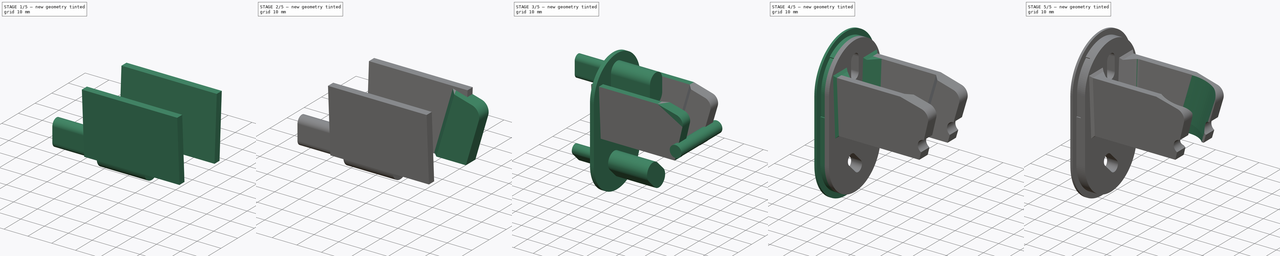
[diagram: build sequence overview — one tinted view per stage of 5, left to right]
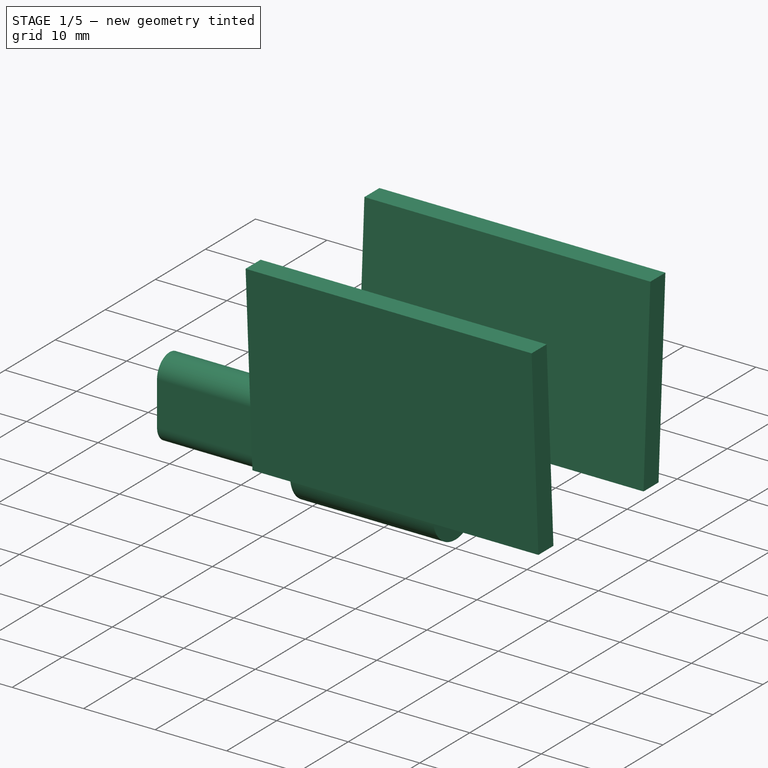
[diagram: stage 1 of 5 — iso view after this stage's code; geometry added in this stage tinted green]
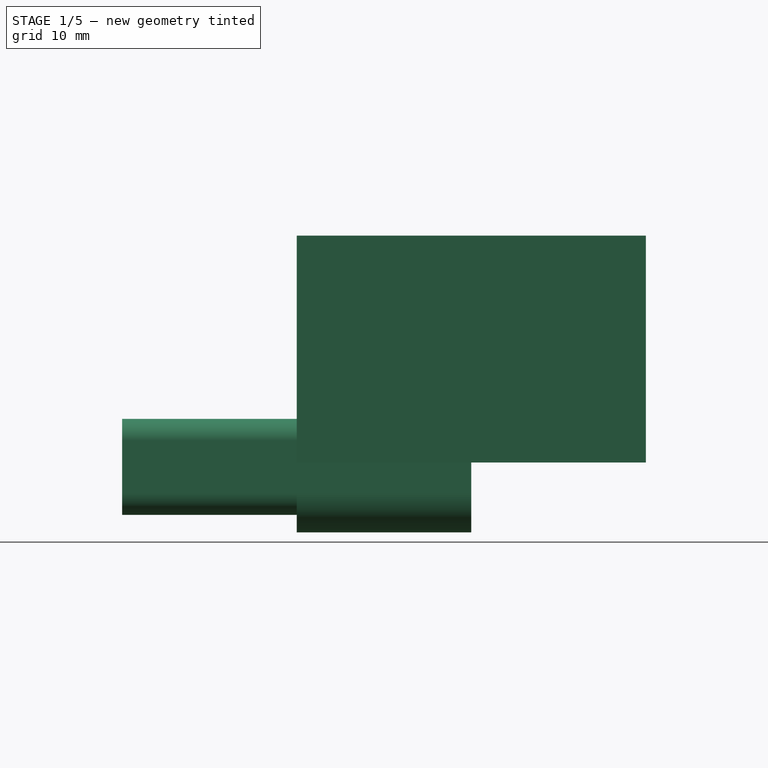
[diagram: stage 1 of 5 — front view after this stage's code; geometry added in this stage tinted green]
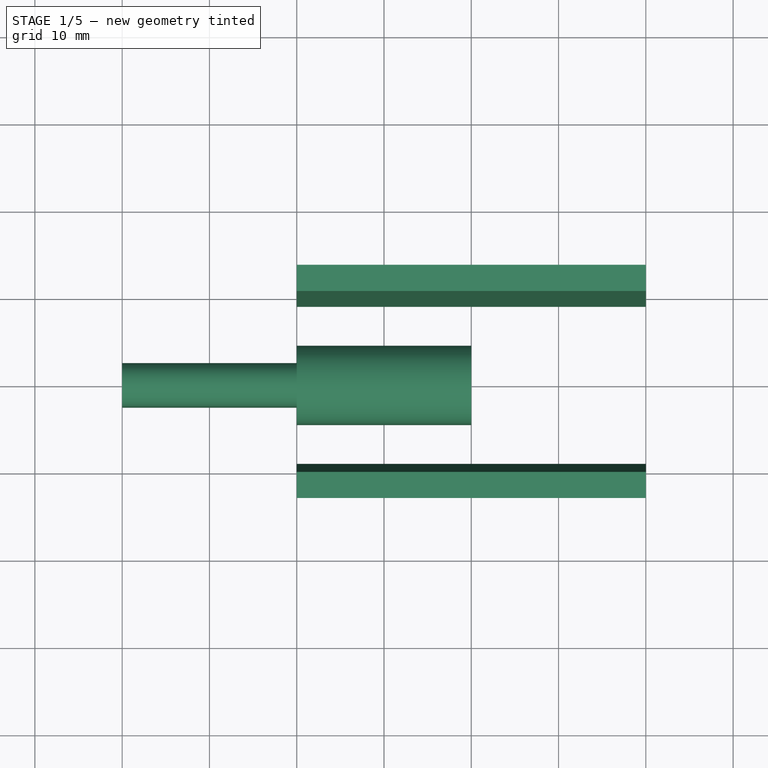
[diagram: stage 1 of 5 — top view after this stage's code; geometry added in this stage tinted green]
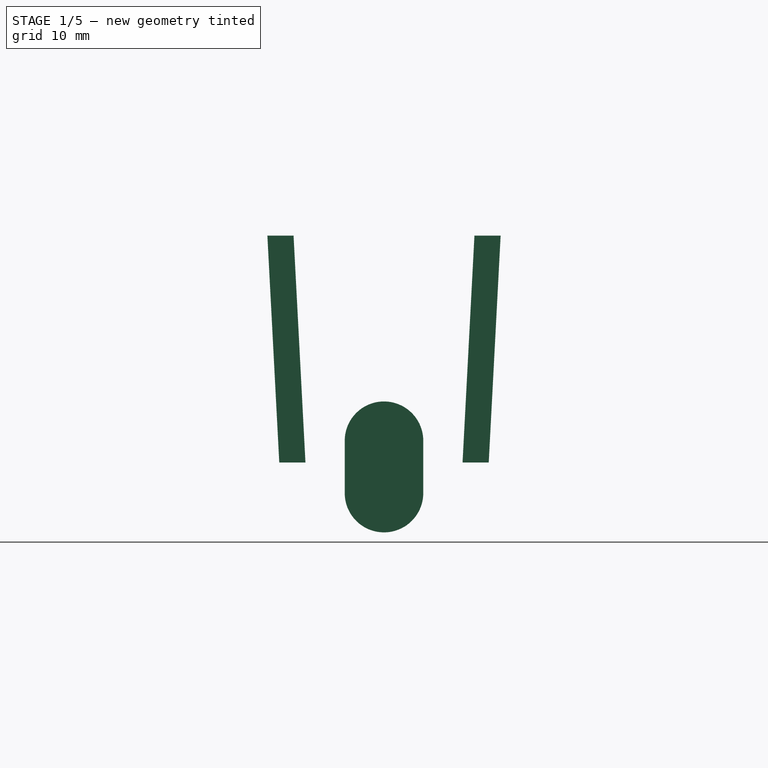
[diagram: stage 1 of 5 — right view after this stage's code; geometry added in this stage tinted green]
FCSTD DOCUMENT  (FreeCAD 0.18R16093 (Git))
Label: shh_v5
License: All rights reserved
LicenseURL: http://en.wikipedia.org/wiki/All_rights_reserved
objects: Sketcher::SketchObject×14, Part::Extrusion×10, PartDesign::Body×5, Part::MultiFuse×5, Part::Cylinder×3, PartDesign::FeatureBase×3, Part::Cut×3, Part::MultiCommon×2, Part::Chamfer×2, Part::Cone×1, Spreadsheet::Sheet×1, Image::ImagePlane×1, Part::Feature×1, PartDesign::Plane×1, Part::Mirroring×1, Part::Fillet×1
note: 52 computed .brp shape members not serialized (recipe doc carries the construction recipe); baked Part::Feature solids carry a one-line shape summary decoded from their .brp

FEATURE [Sketcher::SketchObject] Sketch012  label="HoleBot"
  MapMode = 5
  Placement = pos=(0,0,0) rot=(0.57735,0.57735,0.57735;2.0944rad)
  Support = -> [YZ_Plane001]
  sketch-geometry (4):
    g0: ArcOfCircle CenterX=0 CenterY=3 CenterZ=0 NormalX=0 NormalY=0 NormalZ=1 AngleXU=0 Radius=2.5 StartAngle=0 EndAngle=3.14159
    g1: ArcOfCircle CenterX=0 CenterY=-3 CenterZ=0 NormalX=0 NormalY=0 NormalZ=1 AngleXU=0 Radius=2.5 StartAngle=3.14159 EndAngle=6.28319
    g2: LineSegment StartX=-2.5 StartY=3 StartZ=0 EndX=-2.5 EndY=-3 EndZ=0
    g3: LineSegment StartX=2.5 StartY=3 StartZ=0 EndX=2.5 EndY=-3 EndZ=0
  constraints (13):
    c: PointOnObject(g0,g-2)
    c: Horizontal(g0,g0)
    c: Horizontal(g0,g0)
    c: Radius(g0) = 2.5
    c: Coincident(g2,g0)
    c: Coincident(g2,g1)
    c: Coincident(g3,g0)
    c: Coincident(g3,g1)
    c: Equal(g1,g0)
    c: Symmetric(g1,g0,g-1)
    c: Vertical(g3)
    c: Vertical(g2)
    c: DistanceY(g1,g-1) = 3
FEATURE [Sketcher::SketchObject] Sketch013  label="HoleTop"
  MapMode = 5
  Placement = pos=(0,0,0) rot=(0.57735,0.57735,0.57735;2.0944rad)
  Support = -> [YZ_Plane001]
  sketch-geometry (4):
    g0: ArcOfCircle CenterX=0 CenterY=3 CenterZ=0 NormalX=0 NormalY=0 NormalZ=1 AngleXU=0 Radius=4.5 StartAngle=0 EndAngle=3.14159
    g1: ArcOfCircle CenterX=0 CenterY=-3 CenterZ=0 NormalX=0 NormalY=0 NormalZ=1 AngleXU=0 Radius=4.5 StartAngle=3.14159 EndAngle=6.28319
    g2: LineSegment StartX=-4.5 StartY=3 StartZ=0 EndX=-4.5 EndY=-2.99998 EndZ=0
    g3: LineSegment StartX=4.5 StartY=3 StartZ=0 EndX=4.5 EndY=-2.99998 EndZ=0
  constraints (13):
    c: PointOnObject(g0,g-2)
    c: Horizontal(g0,g0)
    c: Horizontal(g0,g0)
    c: Radius(g0) = 4.5
    c: Coincident(g2,g0)
    c: Coincident(g2,g1)
    c: Coincident(g3,g0)
    c: Coincident(g3,g1)
    c: Equal(g1,g0)
    c: Symmetric(g1,g0,g-1)
    c: Vertical(g3)
    c: Vertical(g2)
    c: DistanceY(g1,g-1) = 3
FEATURE [PartDesign::Body] Body001
  Group = -> [Sketch,Sketch001,Sketch002,Sketch003,Sketch004,Sketch005,Sketch006,Sketch007,Sketch008,Sketch009,Sketch010,Sketch012,Sketch013]
  Origin = -> Origin001
FEATURE [Part::Extrusion] Extrude009
  Base = -> Sketch013
  Dir = (1,-2e-16,3e-16)
  DirMode = 2
  FaceMakerClass = Part::FaceMakerBullseye
  LengthFwd = 20
  LengthRev = 0
  Solid = true
  Symmetric = false
FEATURE [Part::Extrusion] Extrude010
  Base = -> Sketch012
  Dir = (1,-2e-16,3e-16)
  DirMode = 2
  FaceMakerClass = Part::FaceMakerBullseye
  LengthFwd = 0
  LengthRev = 20
  Solid = true
  Symmetric = false
FEATURE [Part::MultiFuse] Fusion004  label="Mounthole"
  Shapes = -> [Extrude009,Extrude010]
FEATURE [PartDesign::FeatureBase] Clone
  BaseFeature = -> Fusion004
FEATURE [PartDesign::Body] Body003
  BaseFeature = -> Fusion004
  Group = -> [Clone]
  Origin = -> Origin003
  Placement = pos=(4,0,25) rot=(0,0,1;0rad)
  Tip = -> Clone
FEATURE [PartDesign::FeatureBase] Clone001
  BaseFeature = -> Fusion004
FEATURE [Part::Extrusion] Extrude011
  Base = -> Sketch008
  Dir = (1,-2e-16,3e-16)
  DirMode = 2
  FaceMakerClass = Part::FaceMakerBullseye
  LengthFwd = 40
  LengthRev = 0
  Solid = true
  Symmetric = false
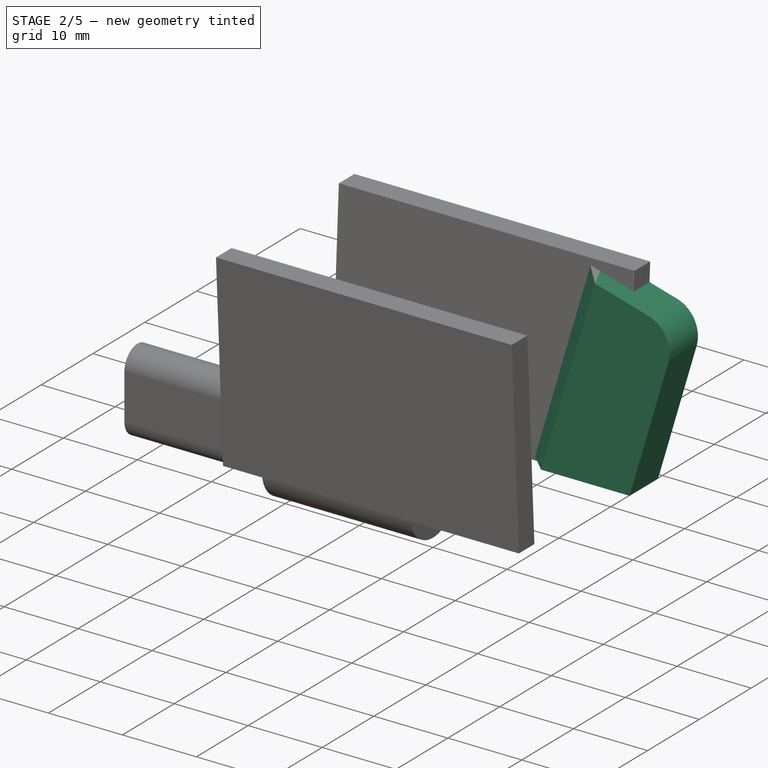
[diagram: stage 2 of 5 — iso view after this stage's code; geometry added in this stage tinted green]
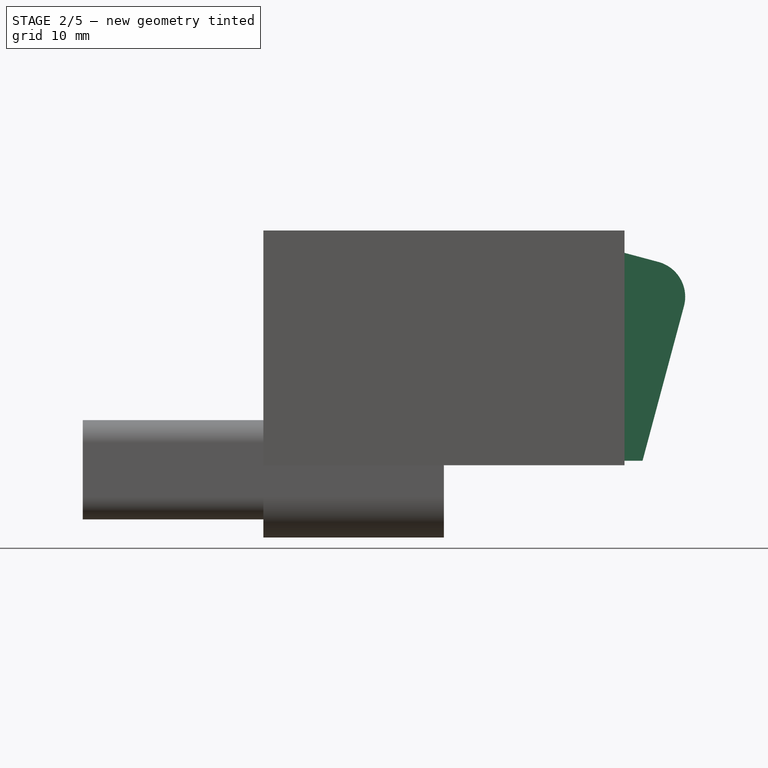
[diagram: stage 2 of 5 — front view after this stage's code; geometry added in this stage tinted green]
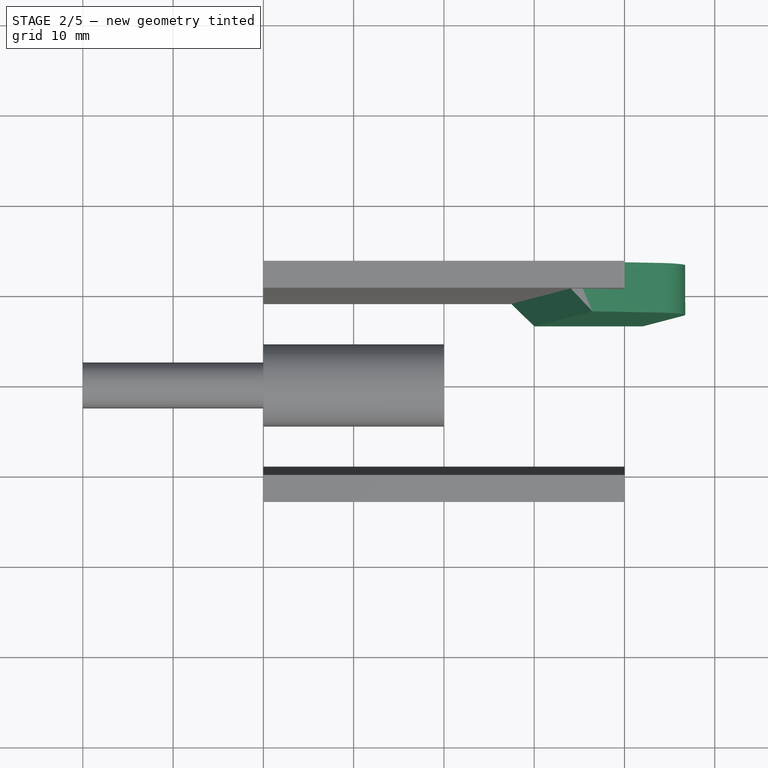
[diagram: stage 2 of 5 — top view after this stage's code; geometry added in this stage tinted green]
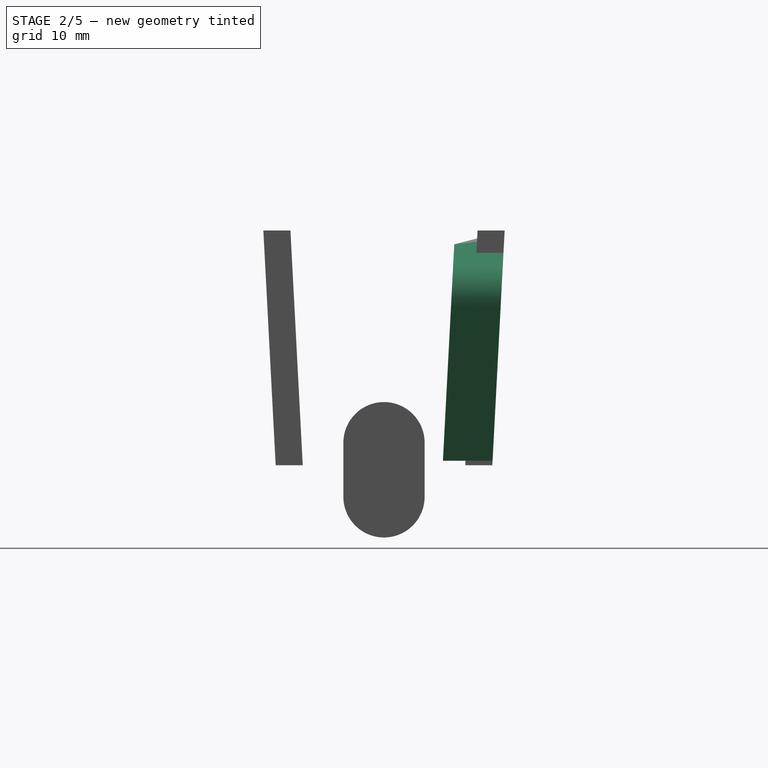
[diagram: stage 2 of 5 — right view after this stage's code; geometry added in this stage tinted green]
FEATURE [Sketcher::SketchObject] Sketch009  label="bracketenvelopesketch"
  ExternalGeometry = -> [Sketch004]
  MapMode = 5
  Placement = pos=(0,0,0) rot=(1,0,0;1.5708rad)
  Support = -> [XZ_Plane001]
  sketch-geometry (4):
    g0: LineSegment StartX=27.5 StartY=1 StartZ=0 EndX=0 EndY=1 EndZ=0
    g1: LineSegment StartX=34.0942 StartY=25.61 StartZ=0 EndX=0 EndY=25.61 EndZ=0
    g2: LineSegment StartX=0 StartY=25.61 StartZ=0 EndX=0 EndY=1 EndZ=0
    g3: LineSegment StartX=34.0942 StartY=25.61 StartZ=0 EndX=27.5 EndY=1 EndZ=0
  constraints (10):
    c: Horizontal(g0)
    c: Coincident(g1,g-3)
    c: PointOnObject(g1,g-2)
    c: Horizontal(g1)
    c: Coincident(g2,g1)
    c: Coincident(g2,g0)
    c: Coincident(g0,g-3)
    c: PointOnObject(g0,g-2)
    c: Coincident(g3,g0)
    c: Coincident(g3,g1)
FEATURE [Sketcher::SketchObject] Sketch010  label="frontbracket"
  MapMode = 5
  Placement = pos=(0,0,0) rot=(0.57735,0.57735,0.57735;2.0944rad)
  Support = -> [YZ_Plane001]
  sketch-geometry (4):
    g0: LineSegment StartX=13.3626 StartY=26.5 StartZ=0 EndX=7.8626 EndY=26.5 EndZ=0
    g1: LineSegment StartX=7.8626 StartY=26.5 StartZ=0 EndX=6.5 EndY=0.5 EndZ=0
    g2: LineSegment StartX=6.5 StartY=0.5 StartZ=0 EndX=12 EndY=0.5 EndZ=0
    g3: LineSegment StartX=12 StartY=0.5 StartZ=0 EndX=13.3626 EndY=26.5 EndZ=0
  constraints (12):
    c: Coincident(g0,g1)
    c: Coincident(g1,g2)
    c: Coincident(g2,g3)
    c: Coincident(g3,g0)
    c: Horizontal(g0)
    c: Horizontal(g2)
    c: DistanceX(g0,g0) = 5.5
    c: DistanceY(g3,g3) = 26
    c: DistanceX(g-1,g1) = 6.5
    c: Parallel(g1,g3)
    c: Angle(g2,g1) = 1.51844
    c: DistanceY(g-1,g1) = 0.5
FEATURE [Part::Extrusion] Extrude005
  Base = -> Sketch010
  Dir = (1,-2e-16,3e-16)
  DirMode = 2
  FaceMakerClass = Part::FaceMakerBullseye
  LengthFwd = 26
  LengthRev = 0
  Placement = pos=(26,0,0) rot=(0,0,1;0rad)
  Solid = true
  Symmetric = false
FEATURE [Part::Extrusion] Extrude006
  Base = -> Sketch004
  Dir = (0,-1,-2e-16)
  DirMode = 2
  FaceMakerClass = Part::FaceMakerBullseye
  LengthFwd = 20
  LengthRev = 20
  Solid = true
  Symmetric = false
FEATURE [Part::MultiCommon] Common  label="FrontOfBracket"
  Shapes = -> [Extrude005,Extrude006]
FEATURE [PartDesign::FeatureBase] BaseFeature
  BaseFeature = -> Common
FEATURE [PartDesign::Plane] DatumPlane
  Length = 43.3124
  MapMode = 7
  Placement = pos=(27.5,6.5262,1) rot=(0.769207,-0.633334,-0.084905;2.93608rad)
  ResizeMode = 0
  Support = -> [BaseFeature]
  Width = 76.9419
FEATURE [Sketcher::SketchObject] Sketch011
  ExternalGeometry = -> [BaseFeature]
  MapMode = 5
  Placement = pos=(27.5,6.5262,1) rot=(0.769207,-0.633334,-0.084905;2.93608rad)
  Support = -> [DatumPlane]
  sketch-geometry (3):
    g0: LineSegment StartX=0 StartY=0 StartZ=0 EndX=-2.39772 EndY=-0.452408 EndZ=0
    g1: LineSegment StartX=-2.39772 StartY=-0.452408 StartZ=0 EndX=0.484845 EndY=-2.39138 EndZ=0
    g2: LineSegment StartX=0.484845 StartY=-2.39138 StartZ=0 EndX=0 EndY=0 EndZ=0
  constraints (8):
    c: Coincident(g0,g-1)
    c: Coincident(g0,g2)
    c: Equal(g0,g2)
    c: PointOnObject(g0,g-3)
    c: Coincident(g1,g0)
    c: Coincident(g1,g2)
    c: PointOnObject(g1,g-4)
    c: DistanceX(g-3,g0) = 3
FEATURE [PartDesign::Body] Body002
  BaseFeature = -> Common
  Group = -> [BaseFeature,DatumPlane,Sketch011]
  Origin = -> Origin002
  Tip = -> BaseFeature
FEATURE [Part::Extrusion] Extrude008
  Base = -> Sketch011
  Dir = (-0.258488,-0.0505573,-0.964691)
  DirMode = 2
  FaceMakerClass = Part::FaceMakerBullseye
  LengthFwd = 10
  LengthRev = 40
  Solid = true
  Symmetric = false
FEATURE [Part::Cut] Cut002  label="PhasedFrontOfBracket"
  Base = -> Body002
  Tool = -> Extrude008
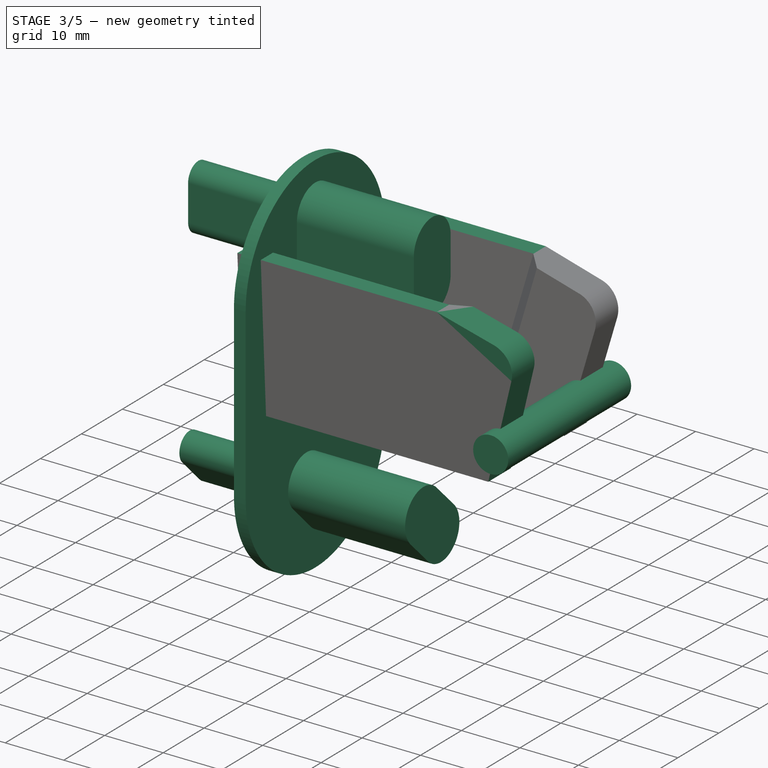
[diagram: stage 3 of 5 — iso view after this stage's code; geometry added in this stage tinted green]
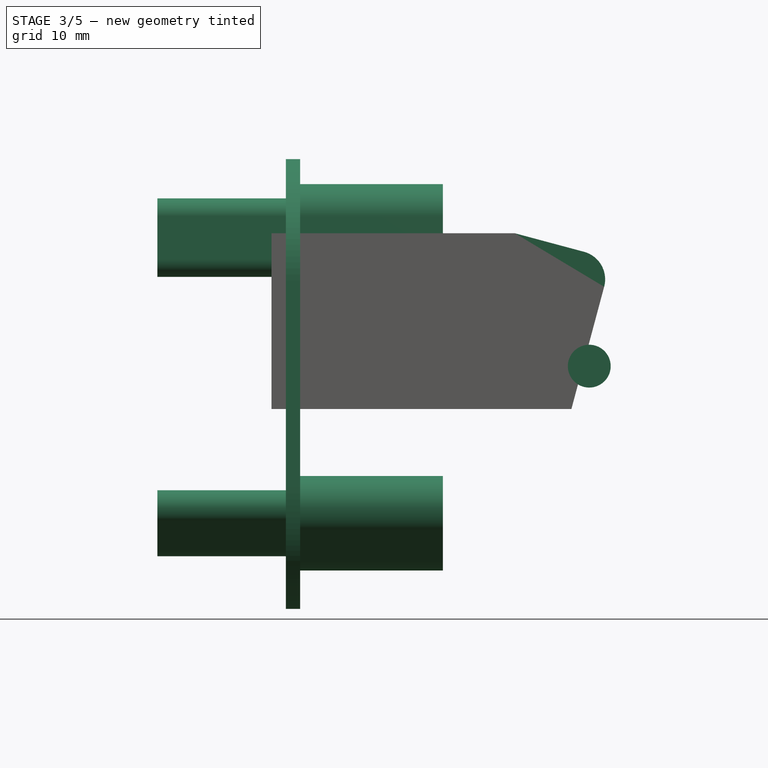
[diagram: stage 3 of 5 — front view after this stage's code; geometry added in this stage tinted green]
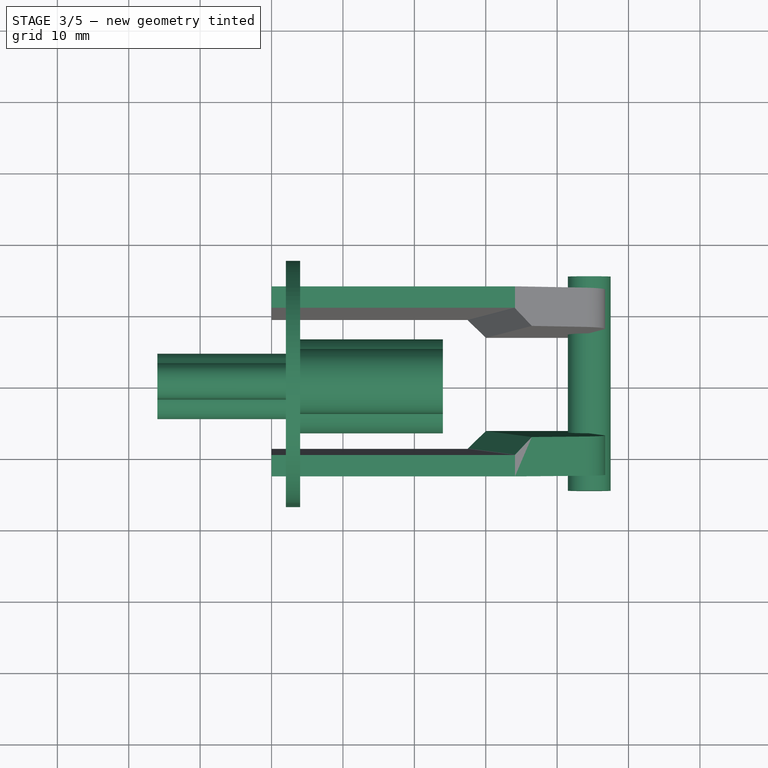
[diagram: stage 3 of 5 — top view after this stage's code; geometry added in this stage tinted green]
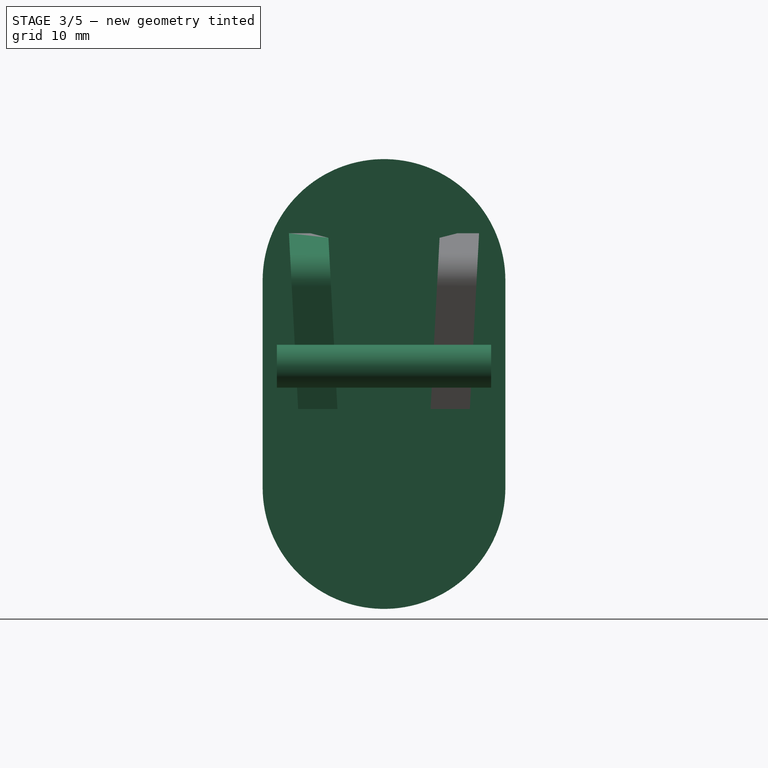
[diagram: stage 3 of 5 — right view after this stage's code; geometry added in this stage tinted green]
FEATURE [Sketcher::SketchObject] Sketch008  label="testbrackets"
  MapMode = 5
  Placement = pos=(0,0,0) rot=(0.57735,0.57735,0.57735;2.0944rad)
  Support = -> [YZ_Plane001]
  sketch-geometry (8):
    g0: LineSegment StartX=13.3626 StartY=26.5 StartZ=0 EndX=10.3626 EndY=26.5 EndZ=0
    g1: LineSegment StartX=10.3626 StartY=26.5 StartZ=0 EndX=9 EndY=0.5 EndZ=0
    g2: LineSegment StartX=9 StartY=0.5 StartZ=0 EndX=12 EndY=0.5 EndZ=0
    g3: LineSegment StartX=12 StartY=0.5 StartZ=0 EndX=13.3626 EndY=26.5 EndZ=0
    g4: LineSegment StartX=-13.3626 StartY=26.5 StartZ=0 EndX=-10.3626 EndY=26.5 EndZ=0
    g5: LineSegment StartX=-10.3626 StartY=26.5 StartZ=0 EndX=-9 EndY=0.5 EndZ=0
    g6: LineSegment StartX=-9 StartY=0.5 StartZ=0 EndX=-12 EndY=0.5 EndZ=0
    g7: LineSegment StartX=-12 StartY=0.5 StartZ=0 EndX=-13.3626 EndY=26.5 EndZ=0
  constraints (22):
    c: Coincident(g0,g1)
    c: Coincident(g1,g2)
    c: Coincident(g2,g3)
    c: Coincident(g3,g0)
    c: Horizontal(g0)
    c: Horizontal(g2)
    c: DistanceX(g0,g0) = 3
    c: Coincident(g4,g5)
    c: Coincident(g5,g6)
    c: Coincident(g6,g7)
    c: Coincident(g7,g4)
    c: Horizontal(g4)
    c: Horizontal(g6)
    c: Symmetric(g5,g1,g-2)
    c: Symmetric(g4,g0,g-2)
    c: DistanceY(g3,g3) = 26
    c: DistanceX(g-1,g1) = 9
    c: Parallel(g1,g3)
    c: Angle(g2,g1) = 1.51844
    c: DistanceY(g-1,g1) = 0.5
    c: Equal(g4,g0)
    c: Equal(g6,g2)
FEATURE [Part::Cylinder] Cylinder003
  Angle = 360
  AttacherType = Attacher::AttachEngine3D
  Height = 30
  Placement = pos=(44.5,15,7) rot=(1,0,0;1.5708rad)
  Radius = 3
FEATURE [Part::Feature] Cut001  label="test_v1"
  shape: bbox 41 x 39 x 68.2 mm, 34 faces (baked)
FEATURE [Part::Extrusion] Extrude
  Base = -> Sketch
  Dir = (1,-2e-16,3e-16)
  DirMode = 2
  FaceMakerClass = Part::FaceMakerBullseye
  LengthFwd = 2
  LengthRev = 0
  Placement = pos=(2,0,0) rot=(0,0,1;0rad)
  Solid = true
  Symmetric = false
FEATURE [Part::Extrusion] Extrude007
  Base = -> Sketch009
  Dir = (0,-1,-2e-16)
  DirMode = 2
  FaceMakerClass = Part::FaceMakerBullseye
  LengthFwd = 20
  LengthRev = 20
  Solid = true
  Symmetric = false
FEATURE [Part::Mirroring] Part__Mirroring  label="PhasedFrontOfBracket (Mirror #1)"
  Base = (0,0,0)
  Normal = (0,1,0)
  Source = -> Cut002
FEATURE [PartDesign::Body] Body004
  BaseFeature = -> Fusion004
  Group = -> [Clone001]
  Origin = -> Origin004
  Placement = pos=(4,0,-15) rot=(1,0,0;0.785398rad)
  Tip = -> Clone001
FEATURE [Part::MultiFuse] Fusion002
  Shapes = -> [Cylinder003,Body003,Body004]
FEATURE [Part::MultiCommon] Common001  label="BackOfBracket"
  Shapes = -> [Extrude007,Extrude011]
FEATURE [Part::MultiFuse] Fusion003
  Shapes = -> [Common001,Part__Mirroring,Cut002]
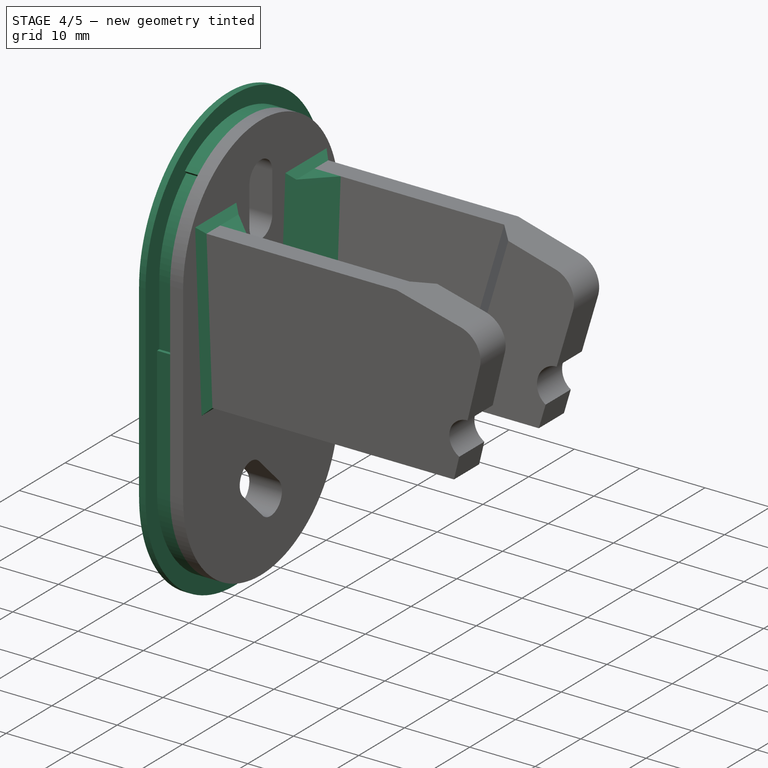
[diagram: stage 4 of 5 — iso view after this stage's code; geometry added in this stage tinted green]
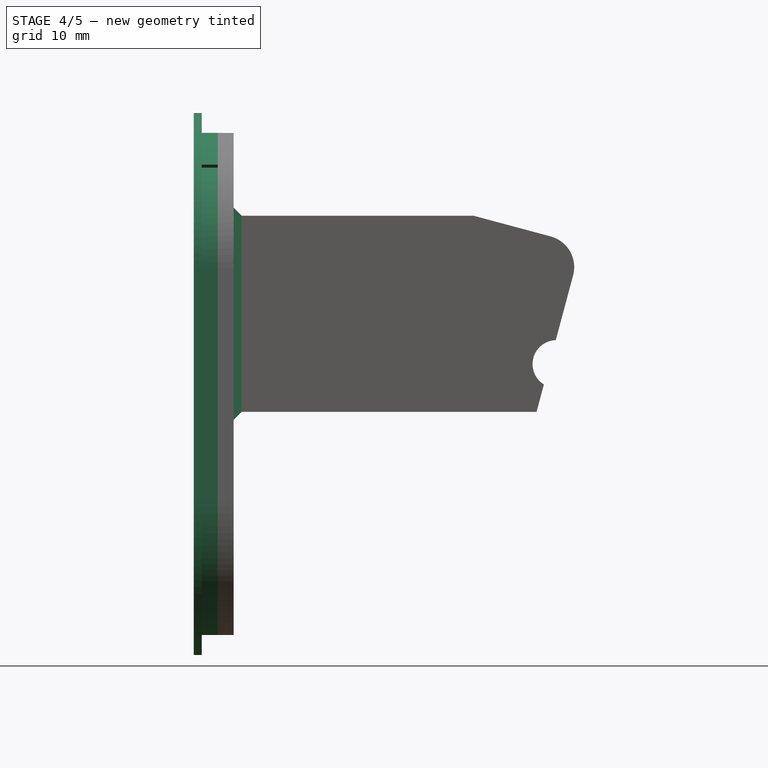
[diagram: stage 4 of 5 — front view after this stage's code; geometry added in this stage tinted green]
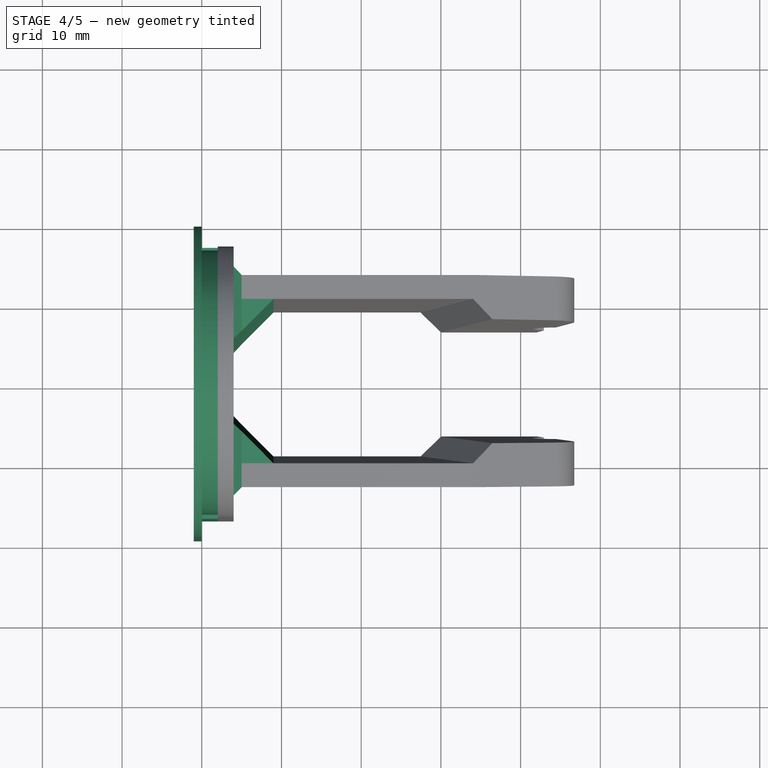
[diagram: stage 4 of 5 — top view after this stage's code; geometry added in this stage tinted green]
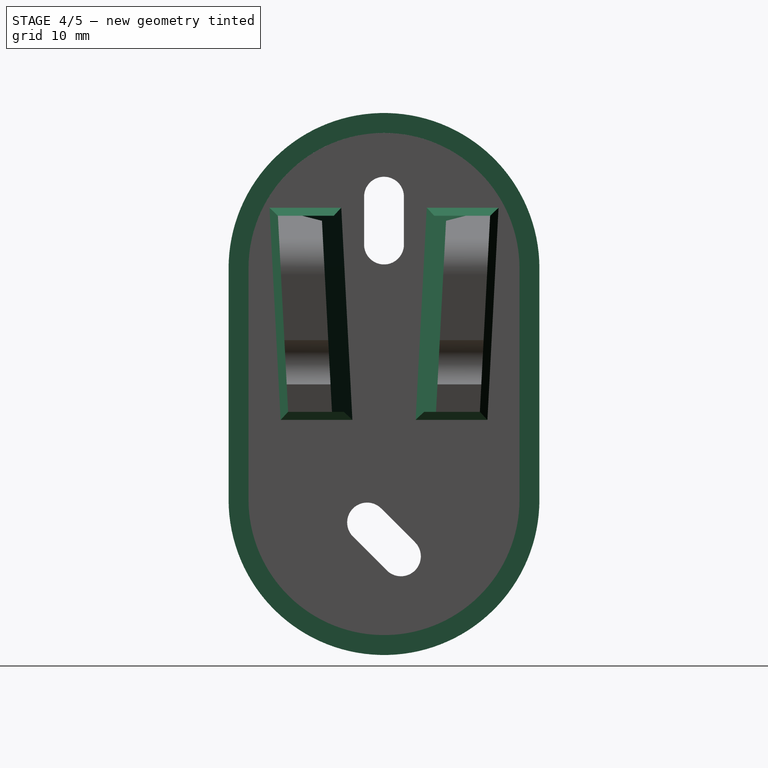
[diagram: stage 4 of 5 — right view after this stage's code; geometry added in this stage tinted green]
FEATURE [Spreadsheet::Sheet] Spreadsheet  label="p"
  cells = C1=1; C5=d; D5=r; B6=sha; C6=20.5; D6(sha)==C6 / 2; F6=Kleiner Radius des konischen Teils des Duschkopfs; B7=shb; C7=23.3; D7==C7 / 2; F7=Großer Radius des konischen Teils des Duschkopfs; B8=shl; C8=25; D8==C8; F8=Länge des konischen Teils des Duschkopfs; C13=d; D13=r; C14=34; D14==C14 / 2; F14=innerer Abstand ohne lippe; C15=33; D15==C15 / 2; F15=innerer Abstand mit Lippe; C16=2; F16=dicke lippe; C17=27; F17=mittelpunktbezug nach unten; C18=36; F18=mittelpunkt nach oben; C19=63; F19=volle innere höhe hinten; D21=15.9; F21=Oval Exclusion zone radius; D23(thick)=2.5; F23=Materialdicke
FEATURE [Sketcher::SketchObject] Sketch  label="LargeBack"
  MapMode = 5
  Placement = pos=(0,0,0) rot=(0.57735,0.57735,0.57735;2.0944rad)
  Support = -> [YZ_Plane001]
  expr: Constraints[13] = p.C17 - p.D14
  expr: Constraints[12] = p.C19 - p.C14
  expr: Constraints[3] = p.D14
  sketch-geometry (4):
    g0: ArcOfCircle CenterX=0 CenterY=19 CenterZ=0 NormalX=0 NormalY=0 NormalZ=1 AngleXU=0 Radius=17 StartAngle=0 EndAngle=3.14159
    g1: ArcOfCircle CenterX=0 CenterY=-10 CenterZ=0 NormalX=0 NormalY=0 NormalZ=1 AngleXU=0 Radius=17 StartAngle=3.14159 EndAngle=6.28319
    g2: LineSegment StartX=-17 StartY=19 StartZ=0 EndX=-17 EndY=-10 EndZ=0
    g3: LineSegment StartX=17 StartY=-10 StartZ=0 EndX=17 EndY=19 EndZ=0
  constraints (14):
    c: PointOnObject(g0,g-2)
    c: Horizontal(g0,g0)
    c: Horizontal(g0,g0)
    c: Radius(g0) = 17
    c: Coincident(g2,g0)
    c: Coincident(g2,g1)
    c: Coincident(g3,g1)
    c: Coincident(g3,g0)
    c: Horizontal(g1,g1)
    c: Horizontal(g1,g1)
    c: Equal(g0,g1)
    c: PointOnObject(g1,g-2)
    c: DistanceY(g1,g0) = 29
    c: DistanceY(g1,g-1) = 10
FEATURE [Sketcher::SketchObject] Sketch001  label="SmallBack"
  MapMode = 5
  Placement = pos=(0,0,0) rot=(0.57735,0.57735,0.57735;2.0944rad)
  Support = -> [YZ_Plane001]
  expr: Constraints[13] = p.C17 - p.D14
  expr: Constraints[12] = p.C19 - p.C14
  expr: Constraints[3] = p.D15
  sketch-geometry (4):
    g0: ArcOfCircle CenterX=0 CenterY=19 CenterZ=0 NormalX=0 NormalY=0 NormalZ=1 AngleXU=0 Radius=16.5 StartAngle=0 EndAngle=3.14159
    g1: ArcOfCircle CenterX=0 CenterY=-10 CenterZ=0 NormalX=0 NormalY=0 NormalZ=1 AngleXU=0 Radius=16.5 StartAngle=3.14159 EndAngle=6.28319
    g2: LineSegment StartX=-16.5 StartY=19 StartZ=0 EndX=-16.5 EndY=-10 EndZ=0
    g3: LineSegment StartX=16.5 StartY=-10 StartZ=0 EndX=16.5 EndY=19 EndZ=0
  constraints (14):
    c: PointOnObject(g0,g-2)
    c: Horizontal(g0,g0)
    c: Horizontal(g0,g0)
    c: Radius(g0) = 16.5
    c: Coincident(g2,g0)
    c: Coincident(g2,g1)
    c: Coincident(g3,g1)
    c: Coincident(g3,g0)
    c: Horizontal(g1,g1)
    c: Horizontal(g1,g1)
    c: Equal(g0,g1)
    c: PointOnObject(g1,g-2)
    c: DistanceY(g1,g0) = 29
    c: DistanceY(g1,g-1) = 10
FEATURE [Sketcher::SketchObject] Sketch002  label="Smallfront"
  MapMode = 5
  Placement = pos=(0,0,0) rot=(0.57735,0.57735,0.57735;2.0944rad)
  Support = -> [YZ_Plane001]
  expr: Constraints[13] = p.C17 - p.D14
  expr: Constraints[12] = p.C19 - p.C14
  expr: Constraints[3] = p.D21
  sketch-geometry (4):
    g0: ArcOfCircle CenterX=0 CenterY=19 CenterZ=0 NormalX=0 NormalY=0 NormalZ=1 AngleXU=0 Radius=15.9 StartAngle=0 EndAngle=3.14159
    g1: ArcOfCircle CenterX=0 CenterY=-10 CenterZ=0 NormalX=0 NormalY=0 NormalZ=1 AngleXU=0 Radius=15.9 StartAngle=3.14159 EndAngle=6.28319
    g2: LineSegment StartX=-15.9 StartY=19 StartZ=0 EndX=-15.9 EndY=-10 EndZ=0
    g3: LineSegment StartX=15.9 StartY=-10 StartZ=0 EndX=15.9 EndY=19 EndZ=0
  constraints (14):
    c: PointOnObject(g0,g-2)
    c: Horizontal(g0,g0)
    c: Horizontal(g0,g0)
    c: Radius(g0) = 15.9
    c: Coincident(g2,g0)
    c: Coincident(g2,g1)
    c: Coincident(g3,g1)
    c: Coincident(g3,g0)
    c: Horizontal(g1,g1)
    c: Horizontal(g1,g1)
    c: Equal(g0,g1)
    c: PointOnObject(g1,g-2)
    c: DistanceY(g1,g0) = 29
    c: DistanceY(g1,g-1) = 10
FEATURE [Sketcher::SketchObject] Sketch003  label="xz-align"
  MapMode = 5
  Placement = pos=(0,0,0) rot=(1,0,0;1.5708rad)
  Support = -> [XZ_Plane001]
  expr: Constraints[17] = p.D6
  expr: Constraints[3] = p.C8
  sketch-geometry (8):
    g0: LineSegment [constr] StartX=0 StartY=0 StartZ=0 EndX=22 EndY=0 EndZ=0
    g1: LineSegment [constr] StartX=39.7953 StartY=25.8783 StartZ=0 EndX=33.3248 EndY=1.73015 EndZ=0
    g2: LineSegment StartX=31.1599 StartY=28.1921 StartZ=0 EndX=39.7953 EndY=25.8783 EndZ=0
    g3: LineSegment StartX=39.7953 StartY=25.8783 StartZ=0 EndX=48.4307 EndY=23.5645 EndZ=0
    g4: LineSegment StartX=48.4307 StartY=23.5645 StartZ=0 EndX=43.2256 EndY=-0.922748 EndZ=0
    g5: LineSegment StartX=43.2256 StartY=-0.922748 StartZ=0 EndX=33.3248 EndY=1.73015 EndZ=0
    g6: LineSegment StartX=33.3248 StartY=1.73015 StartZ=0 EndX=23.4241 EndY=4.38304 EndZ=0
    g7: LineSegment StartX=23.4241 StartY=4.38304 StartZ=0 EndX=31.1599 EndY=28.1921 EndZ=0
  constraints (22):
    c: Horizontal(g0)
    c: Coincident(g0,g-1)
    c: DistanceX(g0,g0) = 22
    c: Distance(g1) = 25
    c: Angle(g1,g-2) = 0.261799
    c: Coincident(g2,g1)
    c: Coincident(g2,g3)
    c: Coincident(g3,g4)
    c: Coincident(g4,g5)
    c: Coincident(g5,g1)
    c: Coincident(g5,g6)
    c: Coincident(g7,g6)
    c: Coincident(g7,g2)
    c: PointOnObject(g0,g7)
    c: Parallel(g6,g5)
    c: Parallel(g2,g3)
    c: Distance(g2,g2) = 8.94
    c: Distance(g6) = 10.25
    c: Equal(g6,g5)
    c: Equal(g2,g3)
    c: Perpendicular(g1,g2)
    c: Perpendicular(g1,g6)
FEATURE [Sketcher::SketchObject] Sketch004  label="xz-align2"
  MapMode = 5
  Placement = pos=(0,0,0) rot=(1,0,0;1.5708rad)
  Support = -> [XZ_Plane001]
  sketch-geometry (6):
    g0: LineSegment [constr] StartX=0 StartY=1 StartZ=0 EndX=27.5 EndY=1 EndZ=0
    g1: LineSegment StartX=27.5 StartY=1 StartZ=0 EndX=42 EndY=1 EndZ=0
    g2: LineSegment StartX=42 StartY=1 StartZ=0 EndX=46.5876 EndY=18.1213 EndZ=0
    g3: LineSegment StartX=27.5 StartY=1 StartZ=0 EndX=34.0942 EndY=25.61 EndZ=0
    g4: LineSegment StartX=34.0942 StartY=25.61 StartZ=0 EndX=43.7592 EndY=23.0203 EndZ=0
    g5: ArcOfCircle CenterX=42.7239 CenterY=19.1566 CenterZ=0 NormalX=0 NormalY=0 NormalZ=1 AngleXU=0 Radius=4 StartAngle=6.02139 EndAngle=7.59218
  constraints (17):
    c: Horizontal(g0)
    c: DistanceX(g0,g0) = 27.5
    c: Coincident(g1,g0)
    c: Horizontal(g1)
    c: Vertical(g0,g-1)
    c: DistanceY(g-1,g0) = 1
    c: DistanceX(g0,g1) = 42
    c: Coincident(g2,g1)
    c: Angle(g2,g1) = 1.8326
    c: Coincident(g3,g0)
    c: Coincident(g4,g3)
    c: Parallel(g3,g2)
    c: Perpendicular(g4,g3)
    c: Tangent(g5,g4) = 1.5708
    c: Tangent(g5,g2) = -1.5708
    c: Radius(g5) = 4
    c: DistanceY(g-1,g3) = 25.61
FEATURE [Image::ImagePlane] ImagePlane
  Placement = pos=(0,0,6) rot=(0.57735,0.57735,0.57735;2.0944rad)
  XSize = 44
  YSize = 75
FEATURE [Sketcher::SketchObject] Sketch006  label="VeryLargeBack"
  MapMode = 5
  Placement = pos=(0,0,0) rot=(0.57735,0.57735,0.57735;2.0944rad)
  Support = -> [YZ_Plane001]
  expr: Constraints[13] = p.C17 - p.D14
  expr: Constraints[12] = p.C19 - p.C14
  expr: Constraints[3] = p.D14 + p.thick
  sketch-geometry (4):
    g0: ArcOfCircle CenterX=0 CenterY=19 CenterZ=0 NormalX=0 NormalY=0 NormalZ=1 AngleXU=0 Radius=19.5 StartAngle=0 EndAngle=3.14159
    g1: ArcOfCircle CenterX=0 CenterY=-10 CenterZ=0 NormalX=0 NormalY=0 NormalZ=1 AngleXU=0 Radius=19.5 StartAngle=3.14159 EndAngle=6.28319
    g2: LineSegment StartX=-19.5 StartY=19 StartZ=0 EndX=-19.5 EndY=-10 EndZ=0
    g3: LineSegment StartX=19.5 StartY=-10 StartZ=0 EndX=19.5 EndY=19 EndZ=0
  constraints (14):
    c: PointOnObject(g0,g-2)
    c: Horizontal(g0,g0)
    c: Horizontal(g0,g0)
    c: Radius(g0) = 19.5
    c: Coincident(g2,g0)
    c: Coincident(g2,g1)
    c: Coincident(g3,g1)
    c: Coincident(g3,g0)
    c: Horizontal(g1,g1)
    c: Horizontal(g1,g1)
    c: Equal(g0,g1)
    c: PointOnObject(g1,g-2)
    c: DistanceY(g1,g0) = 29
    c: DistanceY(g1,g-1) = 10
FEATURE [Sketcher::SketchObject] Sketch007  label="BaseAlignment"
  MapMode = 5
  Placement = pos=(0,0,0) rot=(0.57735,0.57735,0.57735;2.0944rad)
  Support = -> [YZ_Plane001]
  expr: Constraints[13] = p.C17 - p.D14
  expr: Constraints[12] = p.C19 - p.C14
  expr: Constraints[3] = p.D14
  sketch-geometry (7):
    g0: ArcOfCircle [constr] CenterX=0 CenterY=19 CenterZ=0 NormalX=0 NormalY=0 NormalZ=1 AngleXU=0 Radius=17 StartAngle=0 EndAngle=3.14159
    g1: ArcOfCircle [constr] CenterX=0 CenterY=-10 CenterZ=0 NormalX=0 NormalY=0 NormalZ=1 AngleXU=0 Radius=17 StartAngle=3.14159 EndAngle=6.28319
    g2: LineSegment [constr] StartX=-17 StartY=19 StartZ=0 EndX=-17 EndY=-10 EndZ=0
    g3: LineSegment [constr] StartX=17 StartY=-10 StartZ=0 EndX=17 EndY=19 EndZ=0
    g4: LineSegment StartX=0 StartY=19 StartZ=0 EndX=0 EndY=-10 EndZ=0
    g5: LineSegment StartX=-17 StartY=19 StartZ=0 EndX=17 EndY=19 EndZ=0
    g6: LineSegment StartX=-17 StartY=-10 StartZ=0 EndX=17 EndY=-10 EndZ=0
  constraints (20):
    c: PointOnObject(g0,g-2)
    c: Horizontal(g0,g0)
    c: Horizontal(g0,g0)
    c: Radius(g0) = 17
    c: Coincident(g2,g0)
    c: Coincident(g2,g1)
    c: Coincident(g3,g1)
    c: Coincident(g3,g0)
    c: Horizontal(g1,g1)
    c: Horizontal(g1,g1)
    c: Equal(g0,g1)
    c: PointOnObject(g1,g-2)
    c: DistanceY(g1,g0) = 29
    c: DistanceY(g1,g-1) = 10
    c: Coincident(g4,g0)
    c: Coincident(g4,g1)
    c: Coincident(g5,g0)
    c: Coincident(g5,g0)
    c: Coincident(g6,g1)
    c: Coincident(g6,g1)
FEATURE [Sketcher::SketchObject] Sketch005  label="ConstrainedBasePlate"
  ExternalGeometry = -> [Sketch007]
  MapMode = 5
  Placement = pos=(0,0,0) rot=(0.57735,0.57735,0.57735;2.0944rad)
  Support = -> [YZ_Plane001]
  expr: Constraints[9] = p.D14
  expr: Constraints[5] = p.D15
  sketch-geometry (14):
    g0: ArcOfCircle CenterX=0 CenterY=19 CenterZ=0 NormalX=0 NormalY=0 NormalZ=1 AngleXU=0 Radius=16.5 StartAngle=0 EndAngle=0.872665
    g1: LineSegment [constr] StartX=0 StartY=19 StartZ=0 EndX=10.9274 EndY=32.0228 EndZ=0
    g2: LineSegment [constr] StartX=-17 StartY=9.5 StartZ=0 EndX=17 EndY=9.5 EndZ=0
    g3: ArcOfCircle CenterX=0 CenterY=19 CenterZ=0 NormalX=0 NormalY=0 NormalZ=1 AngleXU=0 Radius=17 StartAngle=0.872665 EndAngle=2.26893
    g4: LineSegment StartX=10.606 StartY=31.6397 StartZ=0 EndX=10.9274 EndY=32.0228 EndZ=0
    g5: ArcOfCircle CenterX=0 CenterY=19 CenterZ=0 NormalX=0 NormalY=0 NormalZ=1 AngleXU=0 Radius=16.5 StartAngle=2.26893 EndAngle=3.14159
    g6: LineSegment StartX=-10.9274 StartY=32.0228 StartZ=0 EndX=-10.606 EndY=31.6397 EndZ=0
    g7: LineSegment StartX=16.5 StartY=19 StartZ=0 EndX=16.5 EndY=9.5 EndZ=0
    g8: LineSegment StartX=17 StartY=-10 StartZ=0 EndX=17 EndY=9.5 EndZ=0
    g9: LineSegment StartX=16.5 StartY=9.5 StartZ=0 EndX=17 EndY=9.5 EndZ=0
    g10: LineSegment StartX=-17 StartY=-10 StartZ=0 EndX=-17 EndY=9.5 EndZ=0
    g11: LineSegment StartX=-16.5 StartY=19 StartZ=0 EndX=-16.5 EndY=9.5 EndZ=0
    g12: LineSegment StartX=-16.5 StartY=9.5 StartZ=0 EndX=-17 EndY=9.5 EndZ=0
    g13: ArcOfCircle CenterX=0 CenterY=-10 CenterZ=0 NormalX=0 NormalY=0 NormalZ=1 AngleXU=0 Radius=17 StartAngle=3.14159 EndAngle=6.28319
  constraints (42):
    c: Coincident(g0,g-5)
    c: PointOnObject(g0,g-3)
    c: Coincident(g1,g0)
    c: Horizontal(g2)
    c: PointOnObject(g0,g1)
    c: Radius(g0) = 16.5
    c: Angle(g1,g-3) = 2.26893
    c: Coincident(g3,g0)
    c: PointOnObject(g3,g1)
    c: Radius(g3) = 17
    c: Coincident(g4,g0)
    c: Coincident(g4,g3)
    c: Horizontal(g3,g3)
    c: Coincident(g5,g0)
    c: PointOnObject(g5,g-3)
    c: Equal(g5,g0)
    c: Horizontal(g5,g0)
    c: Coincident(g6,g3)
    c: Coincident(g6,g5)
    c: DistanceY(g-1,g2) = 9.5
    c: Coincident(g7,g0)
    c: PointOnObject(g7,g2)
    c: Vertical(g7)
    c: Coincident(g8,g-4)
    c: PointOnObject(g8,g2)
    c: Vertical(g8)
    c: Coincident(g9,g7)
    c: Coincident(g9,g8)
    c: Coincident(g10,g-4)
    c: PointOnObject(g10,g2)
    c: Vertical(g10)
    c: Horizontal(g1,g3)
    c: Vertical(g2,g8)
    c: Coincident(g11,g5)
    c: PointOnObject(g11,g2)
    c: Vertical(g11)
    c: Coincident(g12,g11)
    c: Coincident(g12,g10)
    c: Vertical(g2,g10)
    c: Coincident(g13,g-5)
    c: Coincident(g13,g10)
    c: PointOnObject(g13,g-4)
FEATURE [Part::Extrusion] Extrude002
  Base = -> Sketch006
  Dir = (1,-2e-16,3e-16)
  DirMode = 2
  FaceMakerClass = Part::FaceMakerBullseye
  LengthFwd = 0
  LengthRev = 1
  Solid = true
  Symmetric = false
FEATURE [Part::Extrusion] Extrude003
  Base = -> Sketch005
  Dir = (1,-2e-16,3e-16)
  DirMode = 2
  FaceMakerClass = Part::FaceMakerBullseye
  LengthFwd = 2
  LengthRev = 0
  Solid = true
  Symmetric = false
FEATURE [Part::MultiFuse] Fusion001  label="testbody_v2"
  Shapes = -> [Extrude002,Extrude003,Extrude,Fusion003]
FEATURE [Part::Cut] Cut
  Base = -> Fusion001
  Tool = -> Fusion002
FEATURE [Part::Chamfer] Chamfer
  Base = -> Cut
  Edges = 2 edges r=5: [Edge94,Edge97]
FEATURE [Part::Chamfer] Chamfer001
  Base = -> Chamfer
  Edges = 10 edges r=1: [Edge1,Edge2,Edge4,Edge5,Edge6,Edge19,Edge20,Edge22,Edge23,Edge24]
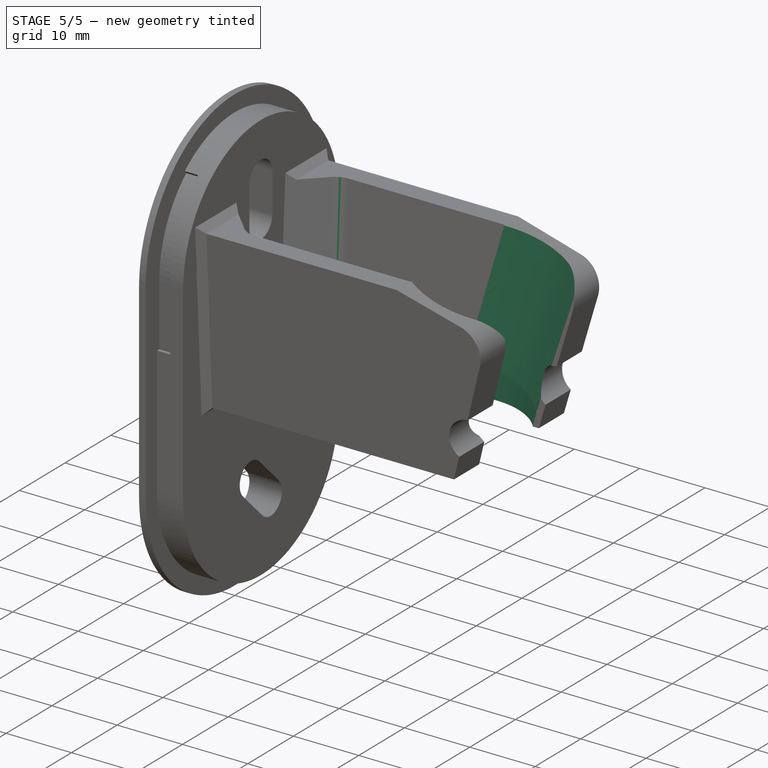
[diagram: stage 5 of 5 — iso view after this stage's code; geometry added in this stage tinted green]
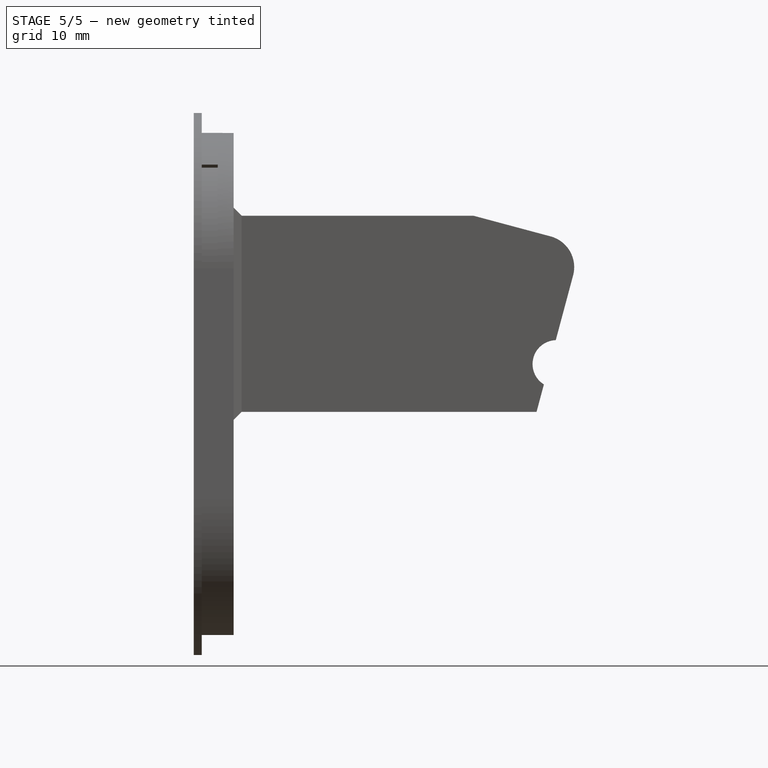
[diagram: stage 5 of 5 — front view after this stage's code; geometry added in this stage tinted green]
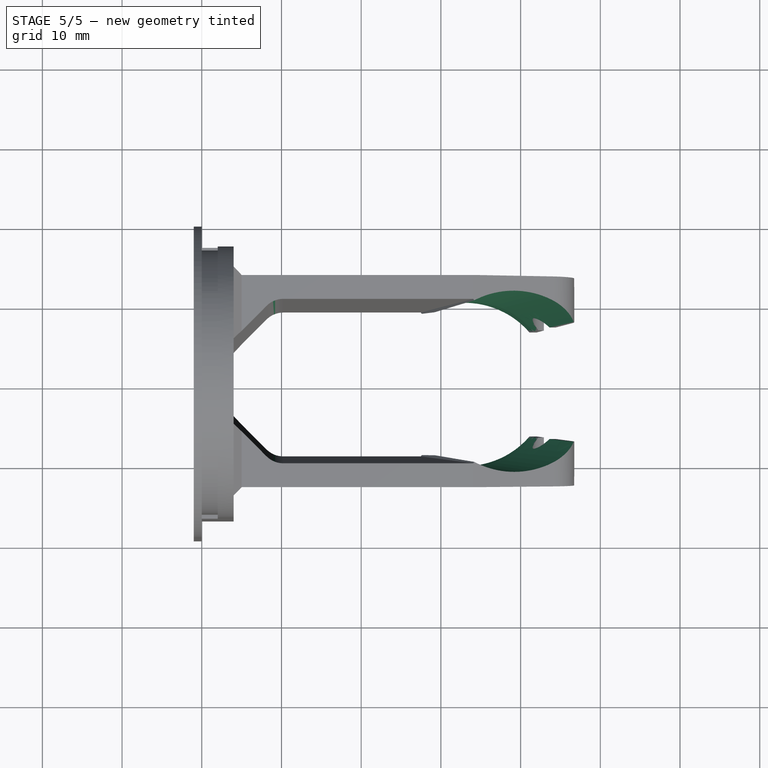
[diagram: stage 5 of 5 — top view after this stage's code; geometry added in this stage tinted green]
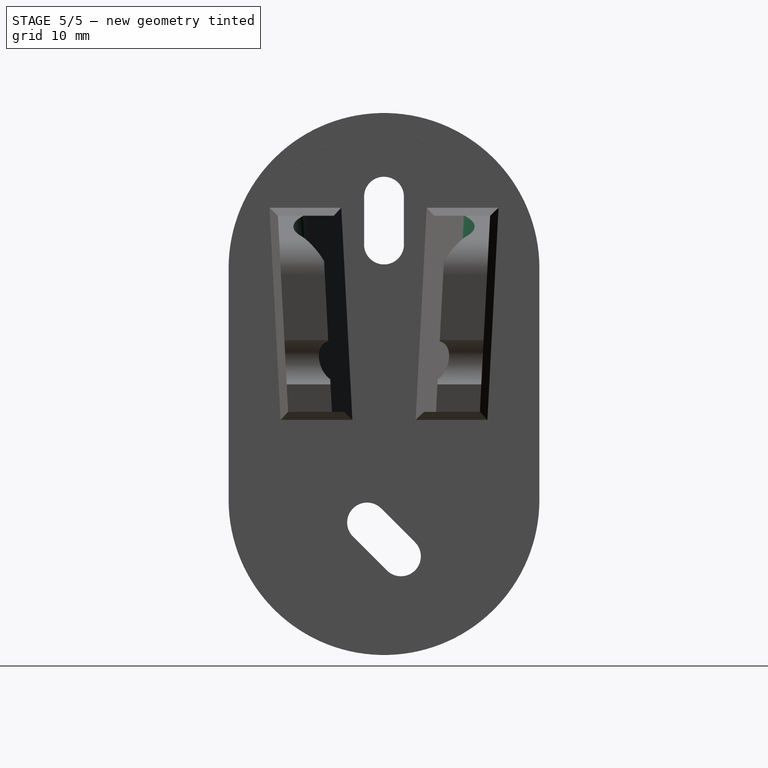
[diagram: stage 5 of 5 — right view after this stage's code; geometry added in this stage tinted green]
FEATURE [PartDesign::Body] Body
  Origin = -> Origin
FEATURE [Part::Cone] Cone
  Angle = 360
  AttacherType = Attacher::AttachEngine3D
  Height = 25
  Radius1 = 10.25
  Radius2 = 11.65
  expr: Height = p.C8
  expr: Radius2 = p.D7
  expr: Radius1 = p.D6
FEATURE [Part::Cylinder] Cylinder
  Angle = 360
  AttacherType = Attacher::AttachEngine3D
  Height = 50
  Placement = pos=(0,0,25) rot=(0,0,1;0rad)
  Radius = 11.65
  expr: Radius = p.D7
FEATURE [Part::Cylinder] Cylinder001
  Angle = 360
  AttacherType = Attacher::AttachEngine3D
  Height = 50
  Placement = pos=(0,0,-50) rot=(0,0,1;0rad)
  Radius = 10.25
  expr: Radius = p.D6
FEATURE [Part::MultiFuse] Fusion  label="ShowerHeadDummy"
  Placement = pos=(34,0,5) rot=(0,1,0;0.261799rad)
  Shapes = -> [Cylinder001,Cone,Cylinder]
FEATURE [Part::Fillet] Fillet
  Base = -> Chamfer001
  Edges = 2 edges r=3: [Edge31,Edge65]
FEATURE [Part::Cut] Cut003  label="ssh_v5"
  Base = -> Fillet
  Tool = -> Fusion
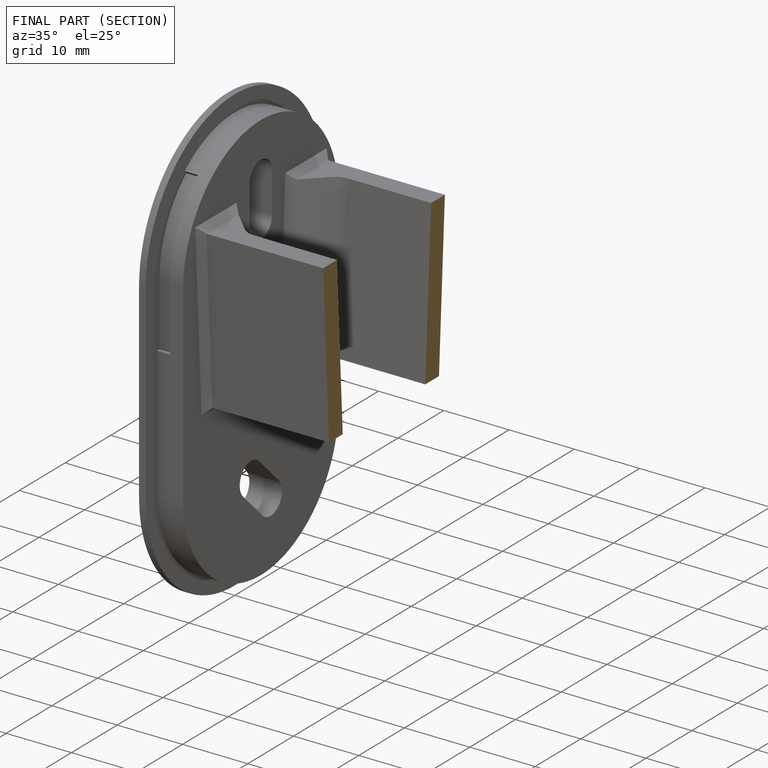
[diagram: finished part — half-section view (interior)]
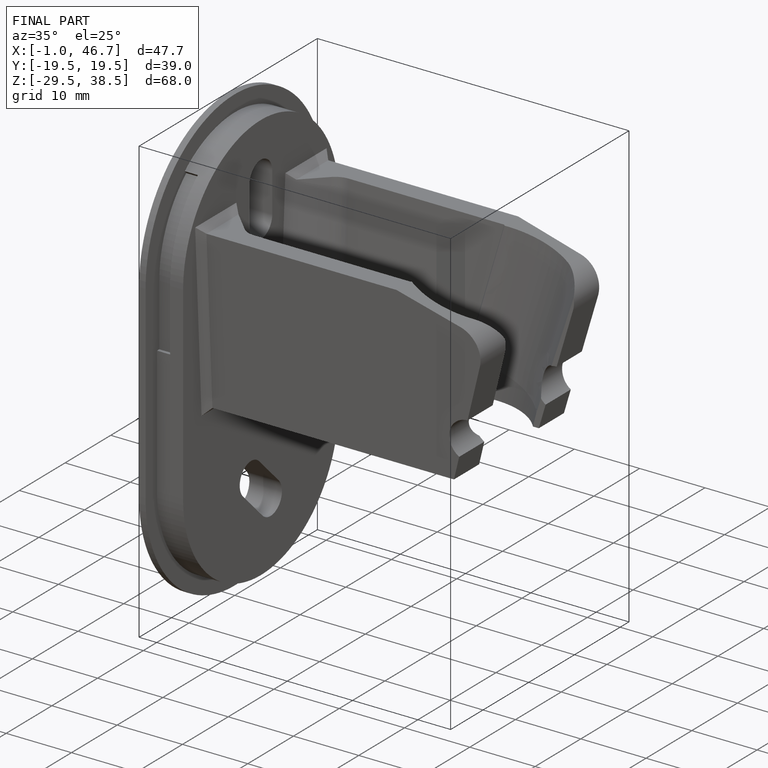
[diagram: finished part — iso view with bounding-box wireframe]
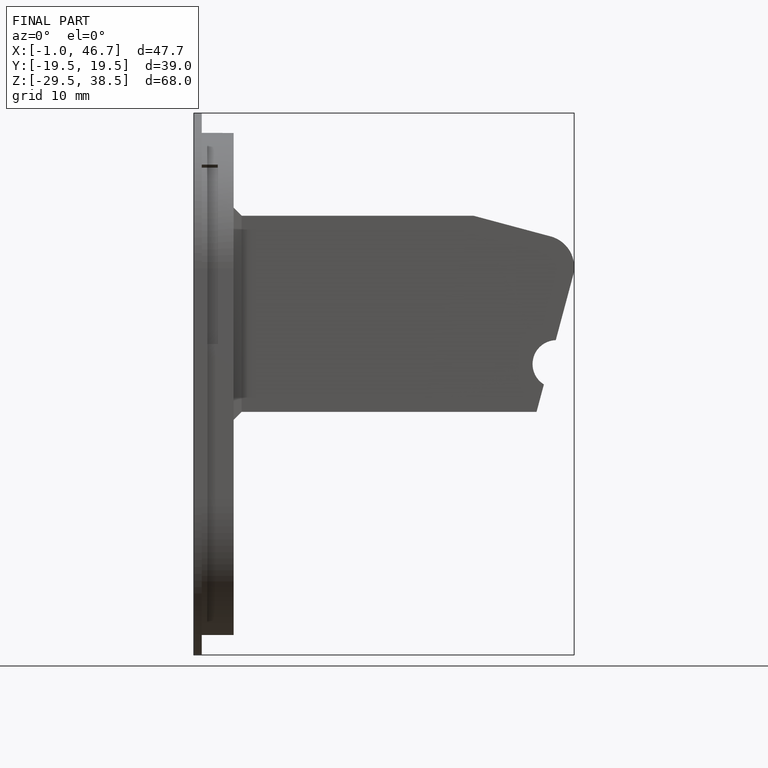
[diagram: finished part — front view with bounding-box wireframe]
